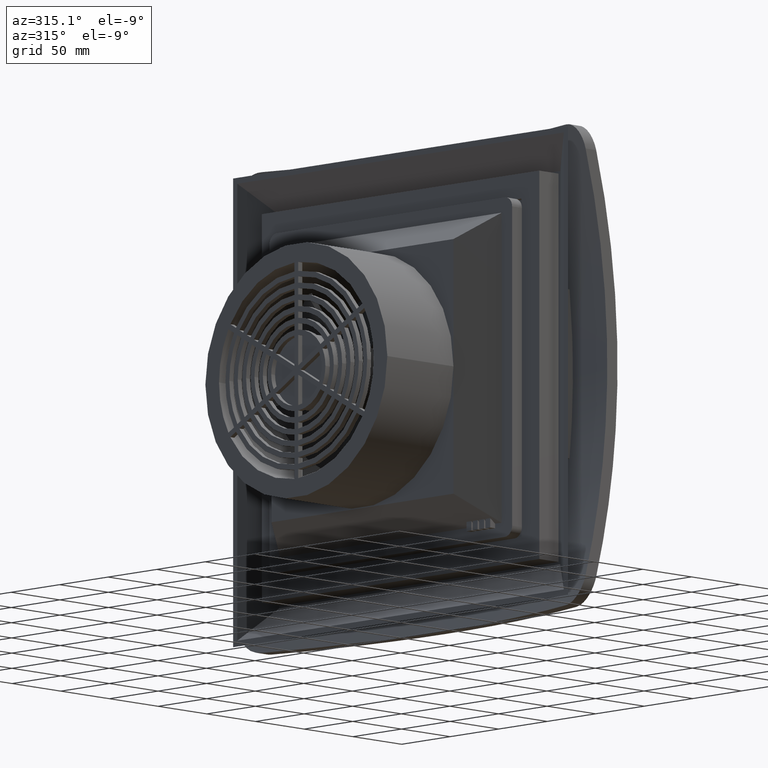
[diagram: clean part render]
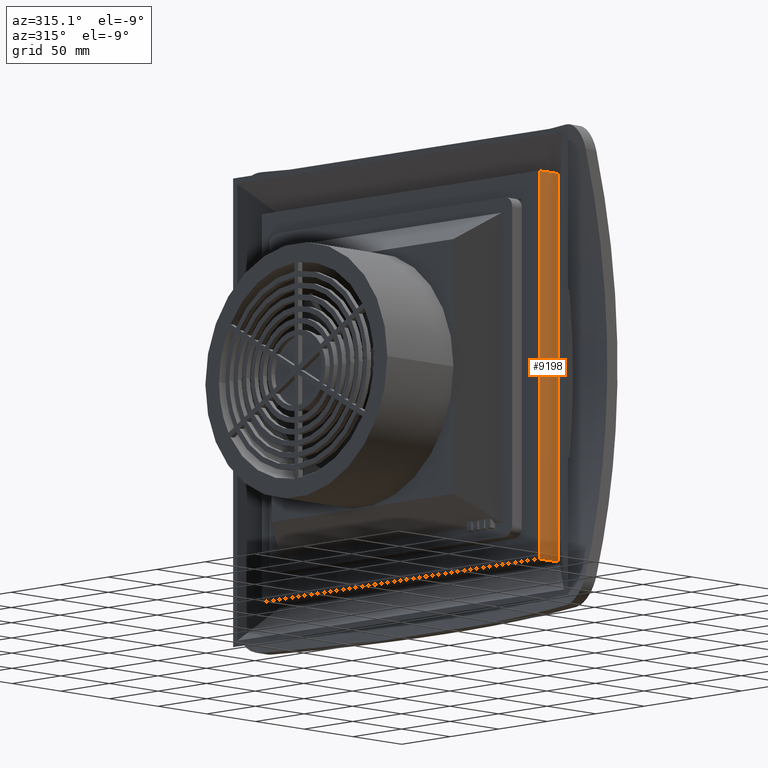
[diagram: same view with one face highlighted and labeled with its STEP entity id]
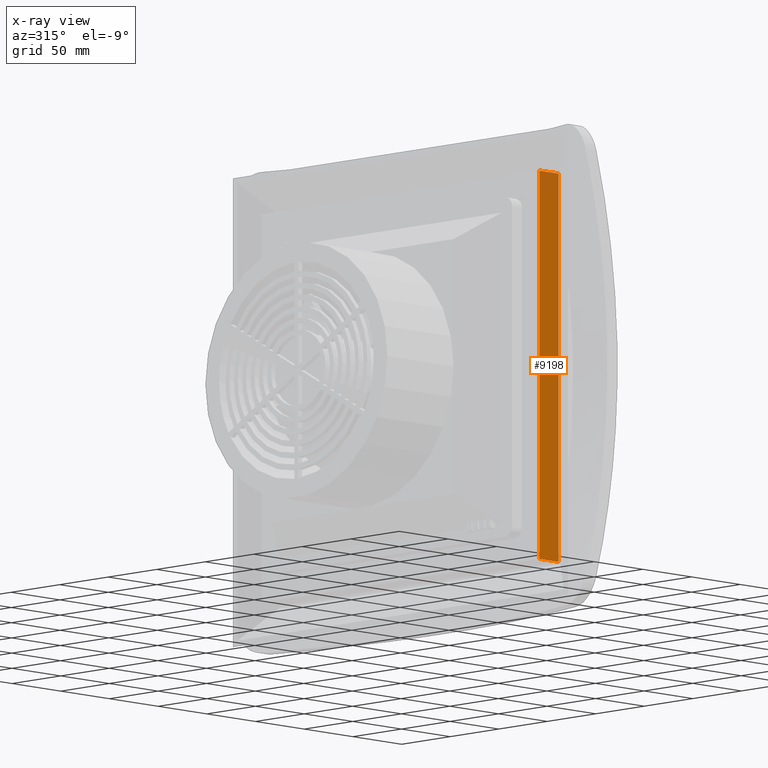
[diagram: x-ray of the same camera — body ghosted, the highlighted face saturated]
A machine part, auxiliary view. The second image highlights one B-rep face of the part: STEP entity #9198.
The next image is the same camera in x-ray: the body ghosted, the highlighted face saturated — about 0% of this face is hidden behind the body in this view.
In plain terms, the highlighted planar face has unit normal (-0, -1, 0).
Its self-contained STEP definition (entity closure, byte-faithful):
#487 = VERTEX_POINT ( 'NONE', #8485 ) ;
#973 = EDGE_CURVE ( 'NONE', #11071, #487, #15031, .T. ) ;
#2067 = LINE ( 'NONE', #5645, #14366 ) ;
#3172 = VECTOR ( 'NONE', #4092, 39.37007874015748143 ) ;
#3451 = ORIENTED_EDGE ( 'NONE', *, *, #15288, .F. ) ;
#4079 = CARTESIAN_POINT ( 'NONE',  ( 0.7759842519685026252, -5.629921259842520342, 1.725961169578661435E-15 ) ) ;
#4092 = DIRECTION ( 'NONE',  ( -0.000000000000000000, -0.000000000000000000, -1.000000000000000000 ) ) ;
#5036 = EDGE_LOOP ( 'NONE', ( #15139, #3451, #8582, #12379 ) ) ;
#5485 = DIRECTION ( 'NONE',  ( -1.000000000000000000, 0.000000000000000000, -6.123031769111889989E-17 ) ) ;
#5645 = CARTESIAN_POINT ( 'NONE',  ( 3.447218673161417839E-16, -5.629921259842520342, -5.629921259842520342 ) ) ;
#5845 = CARTESIAN_POINT ( 'NONE',  ( 0.7759842519685038464, -5.629921259842520342, -5.629921259842520342 ) ) ;
#6858 = CARTESIAN_POINT ( 'NONE',  ( -1.723609336580708574E-15, -5.629921259842520342, 5.629921259842520342 ) ) ;
#6934 = LINE ( 'NONE', #6858, #12279 ) ;
#7266 = VERTEX_POINT ( 'NONE', #10305 ) ;
#7350 = CARTESIAN_POINT ( 'NONE',  ( -1.723609336580708574E-15, -5.629921259842520342, -5.629921259842520342 ) ) ;
#7776 = FACE_OUTER_BOUND ( 'NONE', #5036, .T. ) ;
#7805 = DIRECTION ( 'NONE',  ( -6.123031769111889989E-17, 1.499660721822135524E-32, 1.000000000000000000 ) ) ;
#8485 = CARTESIAN_POINT ( 'NONE',  ( 0.7759842519685036244, -5.629921259842520342, 5.629921259842520342 ) ) ;
#8582 = ORIENTED_EDGE ( 'NONE', *, *, #973, .T. ) ;
#9198 = ADVANCED_FACE ( 'NONE', ( #7776 ), #13811, .T. ) ;
#10305 = CARTESIAN_POINT ( 'NONE',  ( -1.034165601948423922E-15, -5.629921259842520342, 5.629921259842520342 ) ) ;
#11063 = AXIS2_PLACEMENT_3D ( 'NONE', #14929, #12616, #13736 ) ;
#11071 = VERTEX_POINT ( 'NONE', #5845 ) ;
#11689 = DIRECTION ( 'NONE',  ( 1.000000000000000000, 1.216972236187625383E-32, 6.123031769111880128E-17 ) ) ;
#11950 = LINE ( 'NONE', #7350, #3172 ) ;
#12279 = VECTOR ( 'NONE', #11689, 39.37007874015748143 ) ;
#12379 = ORIENTED_EDGE ( 'NONE', *, *, #13166, .F. ) ;
#12448 = VECTOR ( 'NONE', #7805, 39.37007874015748143 ) ;
#12616 = DIRECTION ( 'NONE',  ( -2.449212707644750079E-16, -1.000000000000000000, 0.000000000000000000 ) ) ;
#13106 = CARTESIAN_POINT ( 'NONE',  ( -1.378887469264566150E-15, -5.629921259842520342, -5.629921259842520342 ) ) ;
#13166 = EDGE_CURVE ( 'NONE', #7266, #487, #6934, .T. ) ;
#13736 = DIRECTION ( 'NONE',  ( 1.000000000000000000, -2.449212707644750079E-16, 0.000000000000000000 ) ) ;
#13811 = PLANE ( 'NONE',  #11063 ) ;
#14034 = EDGE_CURVE ( 'NONE', #7266, #14715, #11950, .T. ) ;
#14366 = VECTOR ( 'NONE', #5485, 39.37007874015748143 ) ;
#14715 = VERTEX_POINT ( 'NONE', #13106 ) ;
#14929 = CARTESIAN_POINT ( 'NONE',  ( -1.034165601948425105E-15, -5.629921259842520342, -5.629921259842520342 ) ) ;
#15031 = LINE ( 'NONE', #4079, #12448 ) ;
#15139 = ORIENTED_EDGE ( 'NONE', *, *, #14034, .T. ) ;
#15288 = EDGE_CURVE ( 'NONE', #11071, #14715, #2067, .T. ) ;